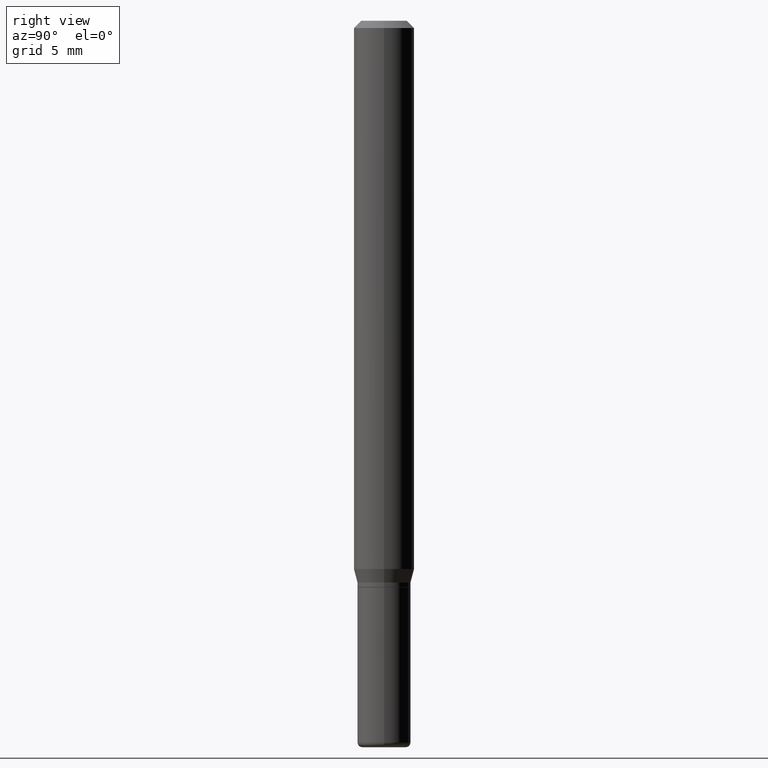
[diagram: clean part render]
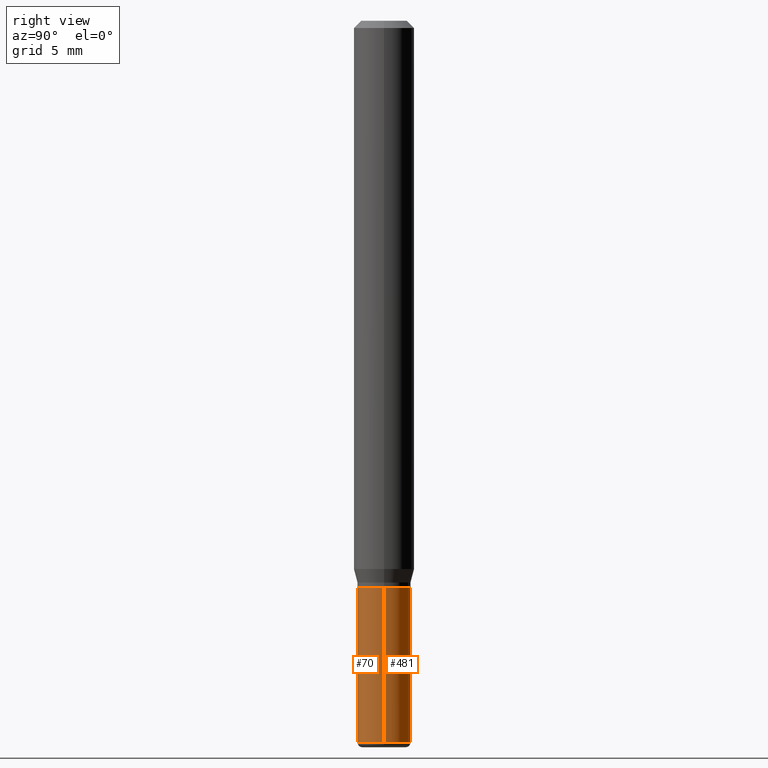
[diagram: same view with one multi-face feature highlighted, each face labeled with its STEP entity id]
A machine part, right view. The highlighted faces form ONE feature: a constant-radius fillet chain: 2 tangent blend faces with common blend radius 1.397 mm. The faces share edges in the B-rep.
Their STEP definitions:
[1] entity #70 (Cylinder):
#1 = VERTEX_POINT ( 'NONE', #203 ) ;
#3 = VERTEX_POINT ( 'NONE', #115 ) ;
#17 = EDGE_CURVE ( 'NONE', #211, #3, #66, .T. ) ;
#25 = DIRECTION ( 'NONE',  ( 1.000000000000000000, -6.982962677686262766E-15, 0.000000000000000000 ) ) ;
#27 = DIRECTION ( 'NONE',  ( -2.445468806185136597E-29, 3.491481338843145583E-15, 1.000000000000000000 ) ) ;
#30 = LINE ( 'NONE', #196, #168 ) ;
#32 = DIRECTION ( 'NONE',  ( -2.445468806185136877E-29, 3.491481338843145188E-15, 1.000000000000000000 ) ) ;
#39 = FACE_OUTER_BOUND ( 'NONE', #90, .T. ) ;
#66 = CIRCLE ( 'NONE', #462, 0.05499999999999995171 ) ;
#70 = ADVANCED_FACE ( 'NONE', ( #39 ), #260, .T. ) ;
#90 = EDGE_LOOP ( 'NONE', ( #295, #360, #132, #476 ) ) ;
#115 = CARTESIAN_POINT ( 'NONE',  ( 0.05499999999999995171, -5.586370142149032301E-15, -1.490000000000000213 ) ) ;
#132 = ORIENTED_EDGE ( 'NONE', *, *, #351, .T. ) ;
#152 = LINE ( 'NONE', #392, #443 ) ;
#153 = DIRECTION ( 'NONE',  ( -2.445468806185136597E-29, 3.491481338843145583E-15, 1.000000000000000000 ) ) ;
#168 = VECTOR ( 'NONE', #32, 39.37007874015748143 ) ;
#180 = DIRECTION ( 'NONE',  ( -2.445468806185136597E-29, 3.491481338843145583E-15, 1.000000000000000000 ) ) ;
#188 = DIRECTION ( 'NONE',  ( 1.000000000000000000, -6.982962677686265922E-15, 4.876176775795935232E-29 ) ) ;
#196 = CARTESIAN_POINT ( 'NONE',  ( -0.05499999999999997946, 3.907985046680549563E-16, -2.705414299640196961E-30 ) ) ;
#203 = CARTESIAN_POINT ( 'NONE',  ( 0.05500000000000000028, -4.469096113719225052E-15, -1.170000000000000151 ) ) ;
#211 = VERTEX_POINT ( 'NONE', #388 ) ;
#233 = DIRECTION ( 'NONE',  ( 1.000000000000000000, -6.982962677686269077E-15, 0.000000000000000000 ) ) ;
#238 = CARTESIAN_POINT ( 'NONE',  ( -0.05500000000000000028, -4.252871675993329426E-15, -1.170000000000000151 ) ) ;
#258 = EDGE_CURVE ( 'NONE', #456, #1, #308, .T. ) ;
#260 = CYLINDRICAL_SURFACE ( 'NONE', #493, 0.05499999999999997946 ) ;
#295 = ORIENTED_EDGE ( 'NONE', *, *, #316, .F. ) ;
#305 = DIRECTION ( 'NONE',  ( -2.445468806185136877E-29, 3.491481338843145188E-15, 1.000000000000000000 ) ) ;
#307 = CARTESIAN_POINT ( 'NONE',  ( 0.000000000000000000, 0.000000000000000000, 0.000000000000000000 ) ) ;
#308 = CIRCLE ( 'NONE', #472, 0.05500000000000000028 ) ;
#316 = EDGE_CURVE ( 'NONE', #211, #456, #30, .T. ) ;
#351 = EDGE_CURVE ( 'NONE', #3, #1, #152, .T. ) ;
#360 = ORIENTED_EDGE ( 'NONE', *, *, #17, .T. ) ;
#388 = CARTESIAN_POINT ( 'NONE',  ( -0.05499999999999995171, -4.252871675993329426E-15, -1.490000000000000213 ) ) ;
#392 = CARTESIAN_POINT ( 'NONE',  ( 0.05499999999999997946, -3.840629472727444916E-16, 2.681897226687763425E-30 ) ) ;
#404 = CARTESIAN_POINT ( 'NONE',  ( 3.643748521215853910E-29, -5.202307194876288105E-15, -1.490000000000000213 ) ) ;
#443 = VECTOR ( 'NONE', #305, 39.37007874015748143 ) ;
#452 = CARTESIAN_POINT ( 'NONE',  ( 2.861198503236610065E-29, -4.085033166446480067E-15, -1.170000000000000151 ) ) ;
#456 = VERTEX_POINT ( 'NONE', #238 ) ;
#462 = AXIS2_PLACEMENT_3D ( 'NONE', #404, #153, #233 ) ;
#472 = AXIS2_PLACEMENT_3D ( 'NONE', #452, #180, #25 ) ;
#476 = ORIENTED_EDGE ( 'NONE', *, *, #258, .F. ) ;
#493 = AXIS2_PLACEMENT_3D ( 'NONE', #307, #27, #188 ) ;
[2] entity #481 (Cylinder):
#1 = VERTEX_POINT ( 'NONE', #203 ) ;
#3 = VERTEX_POINT ( 'NONE', #115 ) ;
#5 = CIRCLE ( 'NONE', #67, 0.05500000000000000028 ) ;
#8 = ORIENTED_EDGE ( 'NONE', *, *, #351, .F. ) ;
#30 = LINE ( 'NONE', #196, #168 ) ;
#32 = DIRECTION ( 'NONE',  ( -2.445468806185136877E-29, 3.491481338843145188E-15, 1.000000000000000000 ) ) ;
#67 = AXIS2_PLACEMENT_3D ( 'NONE', #181, #418, #290 ) ;
#77 = AXIS2_PLACEMENT_3D ( 'NONE', #458, #93, #371 ) ;
#93 = DIRECTION ( 'NONE',  ( -2.445468806185136597E-29, 3.491481338843145583E-15, 1.000000000000000000 ) ) ;
#115 = CARTESIAN_POINT ( 'NONE',  ( 0.05499999999999995171, -5.586370142149032301E-15, -1.490000000000000213 ) ) ;
#126 = CARTESIAN_POINT ( 'NONE',  ( 0.000000000000000000, 0.000000000000000000, 0.000000000000000000 ) ) ;
#152 = LINE ( 'NONE', #392, #443 ) ;
#168 = VECTOR ( 'NONE', #32, 39.37007874015748143 ) ;
#181 = CARTESIAN_POINT ( 'NONE',  ( 2.861198503236610065E-29, -4.085033166446480067E-15, -1.170000000000000151 ) ) ;
#189 = EDGE_CURVE ( 'NONE', #3, #211, #212, .T. ) ;
#196 = CARTESIAN_POINT ( 'NONE',  ( -0.05499999999999997946, 3.907985046680549563E-16, -2.705414299640196961E-30 ) ) ;
#198 = EDGE_LOOP ( 'NONE', ( #255, #434, #378, #8 ) ) ;
#203 = CARTESIAN_POINT ( 'NONE',  ( 0.05500000000000000028, -4.469096113719225052E-15, -1.170000000000000151 ) ) ;
#211 = VERTEX_POINT ( 'NONE', #388 ) ;
#212 = CIRCLE ( 'NONE', #77, 0.05499999999999995171 ) ;
#217 = EDGE_CURVE ( 'NONE', #1, #456, #5, .T. ) ;
#238 = CARTESIAN_POINT ( 'NONE',  ( -0.05500000000000000028, -4.252871675993329426E-15, -1.170000000000000151 ) ) ;
#255 = ORIENTED_EDGE ( 'NONE', *, *, #189, .T. ) ;
#280 = DIRECTION ( 'NONE',  ( 1.000000000000000000, -6.982962677686265922E-15, 4.876176775795935232E-29 ) ) ;
#283 = DIRECTION ( 'NONE',  ( -2.445468806185136597E-29, 3.491481338843145583E-15, 1.000000000000000000 ) ) ;
#290 = DIRECTION ( 'NONE',  ( 1.000000000000000000, -6.982962677686262766E-15, 0.000000000000000000 ) ) ;
#305 = DIRECTION ( 'NONE',  ( -2.445468806185136877E-29, 3.491481338843145188E-15, 1.000000000000000000 ) ) ;
#316 = EDGE_CURVE ( 'NONE', #211, #456, #30, .T. ) ;
#351 = EDGE_CURVE ( 'NONE', #3, #1, #152, .T. ) ;
#371 = DIRECTION ( 'NONE',  ( 1.000000000000000000, -6.982962677686269077E-15, 0.000000000000000000 ) ) ;
#378 = ORIENTED_EDGE ( 'NONE', *, *, #217, .F. ) ;
#388 = CARTESIAN_POINT ( 'NONE',  ( -0.05499999999999995171, -4.252871675993329426E-15, -1.490000000000000213 ) ) ;
#392 = CARTESIAN_POINT ( 'NONE',  ( 0.05499999999999997946, -3.840629472727444916E-16, 2.681897226687763425E-30 ) ) ;
#411 = AXIS2_PLACEMENT_3D ( 'NONE', #126, #283, #280 ) ;
#418 = DIRECTION ( 'NONE',  ( -2.445468806185136597E-29, 3.491481338843145583E-15, 1.000000000000000000 ) ) ;
#434 = ORIENTED_EDGE ( 'NONE', *, *, #316, .T. ) ;
#443 = VECTOR ( 'NONE', #305, 39.37007874015748143 ) ;
#456 = VERTEX_POINT ( 'NONE', #238 ) ;
#458 = CARTESIAN_POINT ( 'NONE',  ( 3.643748521215853910E-29, -5.202307194876288105E-15, -1.490000000000000213 ) ) ;
#478 = FACE_OUTER_BOUND ( 'NONE', #198, .T. ) ;
#481 = ADVANCED_FACE ( 'NONE', ( #478 ), #486, .T. ) ;
#486 = CYLINDRICAL_SURFACE ( 'NONE', #411, 0.05499999999999997946 ) ;